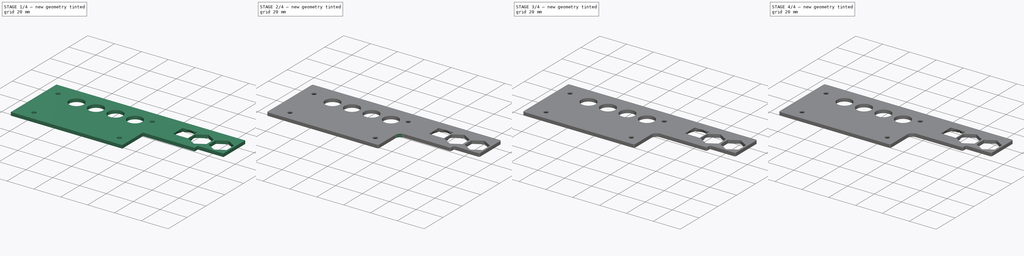
[diagram: build sequence overview — one tinted view per stage of 4, left to right]
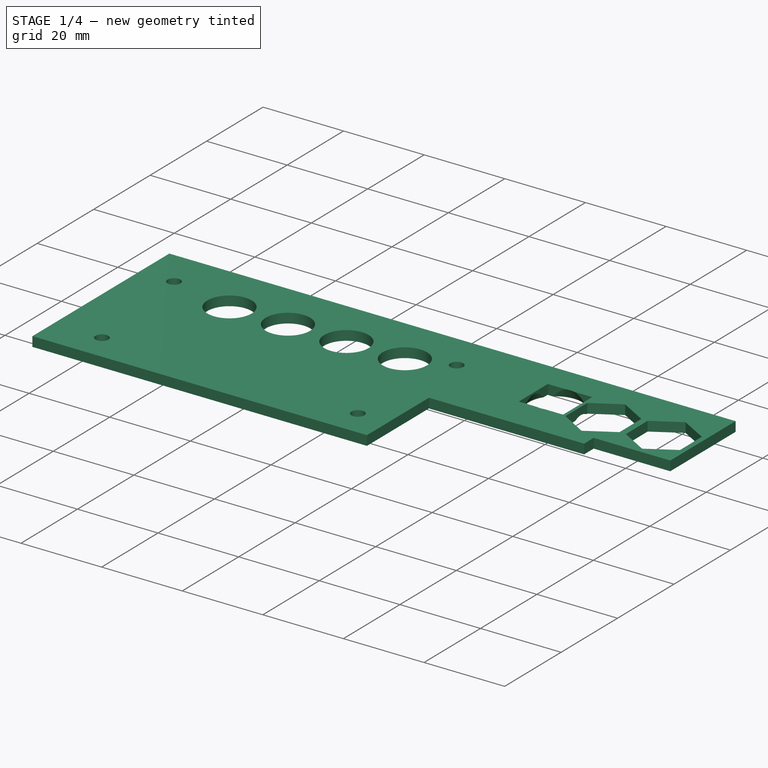
[diagram: stage 1 of 4 — iso view after this stage's code; geometry added in this stage tinted green]
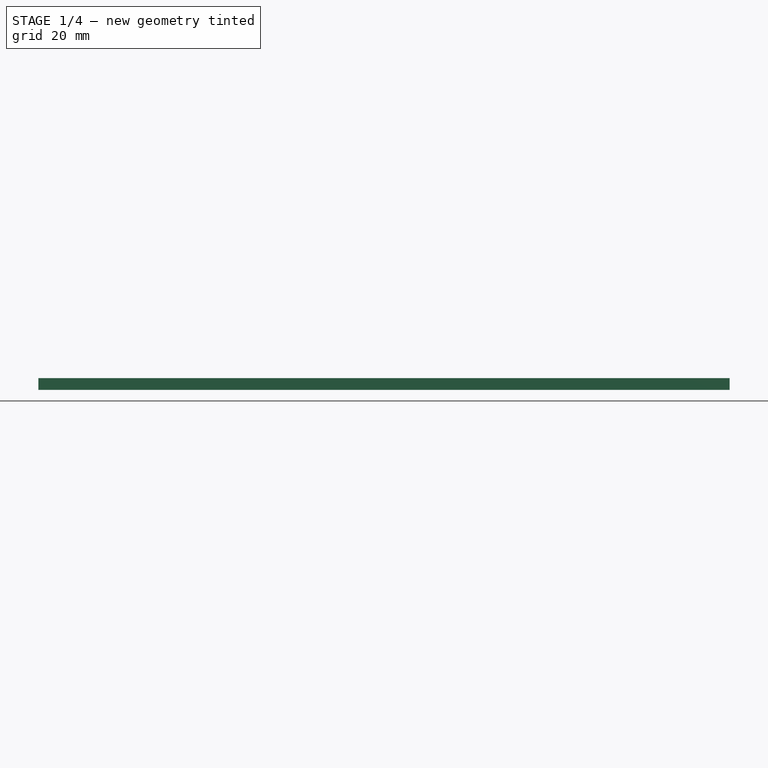
[diagram: stage 1 of 4 — front view after this stage's code; geometry added in this stage tinted green]
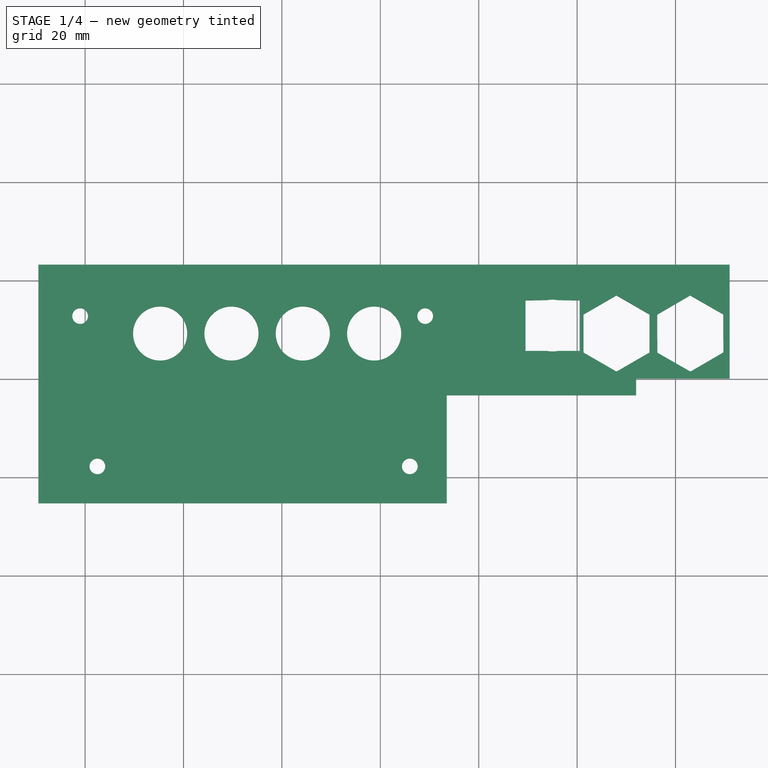
[diagram: stage 1 of 4 — top view after this stage's code; geometry added in this stage tinted green]
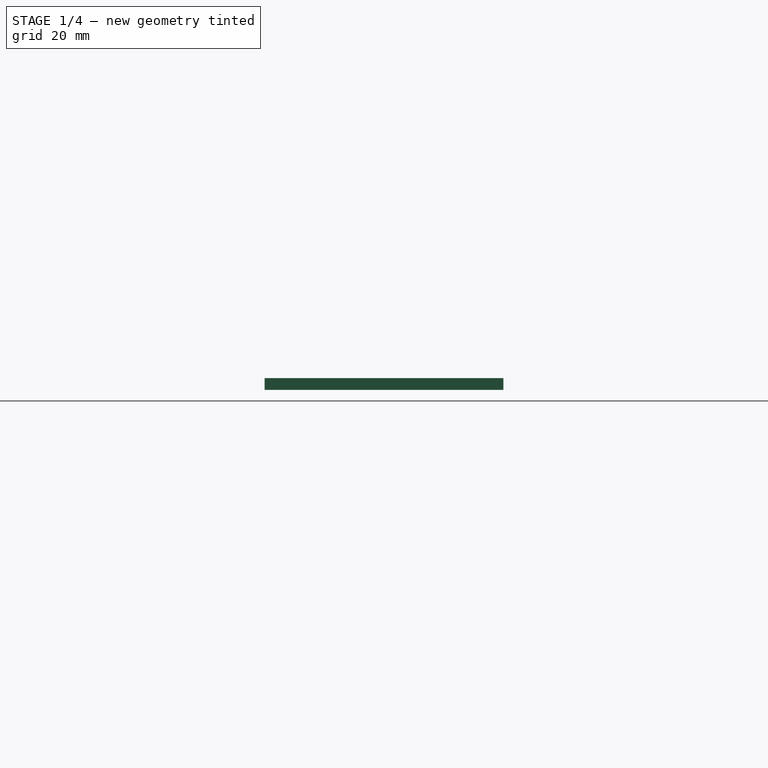
[diagram: stage 1 of 4 — right view after this stage's code; geometry added in this stage tinted green]
FCSTD DOCUMENT  (FreeCAD 0.16R6712 (Git))
Label: cover-plates
License: All rights reserved
LicenseURL: http://en.wikipedia.org/wiki/All_rights_reserved
objects: Part::Part2DObjectPython×7, Part::Extrusion×7, Sketcher::SketchObject×2, Part::Fillet×2, PartDesign::Pad×1, PartDesign::Pocket×1, Spreadsheet::Sheet×1, Part::Cone×1, Part::Cut×1, PartDesign::Chamfer×1
note: 25 computed .brp shape members not serialized (recipe doc carries the construction recipe); baked Part::Feature solids carry a one-line shape summary decoded from their .brp

FEATURE [Sketcher::SketchObject] Sketch013
  sketch-geometry (37):
    g0: LineSegment StartX=-9.5 StartY=23.25 StartZ=0 EndX=-9.5 EndY=-3.25 EndZ=0
    g1: Circle CenterX=15.25 CenterY=9.25 CenterZ=0 NormalX=0 NormalY=0 NormalZ=1 Radius=5.5
    g2: Circle CenterX=44.25 CenterY=9.25 CenterZ=0 NormalX=0 NormalY=0 NormalZ=1 Radius=5.5
    g3: Circle CenterX=29.75 CenterY=9.25 CenterZ=0 NormalX=0 NormalY=0 NormalZ=1 Radius=5.5
    g4: Circle CenterX=58.75 CenterY=9.25 CenterZ=0 NormalX=0 NormalY=0 NormalZ=1 Radius=5.5
    g5: Circle CenterX=-1.01165 CenterY=12.8 CenterZ=0 NormalX=0 NormalY=0 NormalZ=1 Radius=1.6
    g6: Circle CenterX=69.12 CenterY=12.8 CenterZ=0 NormalX=0 NormalY=0 NormalZ=1 Radius=1.6
    g7: LineSegment StartX=100.5 StartY=16 StartZ=0 EndX=89.5 EndY=16 EndZ=0
    g8: LineSegment StartX=-9.5 StartY=23.25 StartZ=0 EndX=131 EndY=23.25 EndZ=0
    g9: LineSegment StartX=112 StartY=-3.27864 StartZ=0 EndX=112 EndY=0.109842 EndZ=0
    g10: LineSegment StartX=101.301 StartY=5.37793 StartZ=0 EndX=108.004 EndY=1.51217 EndZ=0
    g11: LineSegment StartX=108.004 StartY=1.51217 StartZ=0 EndX=114.703 EndY=5.38424 EndZ=0
    g12: LineSegment StartX=114.703 StartY=5.38424 StartZ=0 EndX=114.699 EndY=13.1221 EndZ=0
    g13: LineSegment StartX=114.699 StartY=13.1221 StartZ=0 EndX=107.996 EndY=16.9878 EndZ=0
    g14: LineSegment StartX=107.996 StartY=16.9878 StartZ=0 EndX=101.297 EndY=13.1158 EndZ=0
    g15: LineSegment StartX=101.297 StartY=13.1158 StartZ=0 EndX=101.301 EndY=5.37793 EndZ=0
    g16: Circle [constr] CenterX=108 CenterY=9.25 CenterZ=0 NormalX=0 NormalY=0 NormalZ=1 Radius=7.73783
    g17: LineSegment StartX=116.307 StartY=5.35266 StartZ=0 EndX=123.029 EndY=1.50529 EndZ=0
    g18: LineSegment StartX=123.029 StartY=1.50529 StartZ=0 EndX=129.722 EndY=5.40262 EndZ=0
    g19: LineSegment StartX=129.722 StartY=5.40262 StartZ=0 EndX=129.693 EndY=13.1473 EndZ=0
    g20: LineSegment StartX=129.693 StartY=13.1473 StartZ=0 EndX=122.971 EndY=16.9947 EndZ=0
    g21: LineSegment StartX=122.971 StartY=16.9947 StartZ=0 EndX=116.278 EndY=13.0974 EndZ=0
    g22: LineSegment StartX=116.278 StartY=13.0974 StartZ=0 EndX=116.307 EndY=5.35266 EndZ=0
    g23: Circle [constr] CenterX=123 CenterY=9.25 CenterZ=0 NormalX=0 NormalY=0 NormalZ=1 Radius=7.74477
    g24: LineSegment [constr] StartX=-1.01165 StartY=12.8 StartZ=0 EndX=69.12 EndY=12.8 EndZ=0
    g25: LineSegment StartX=73.5 StartY=-25.25 StartZ=0 EndX=73.5 EndY=-3.27864 EndZ=0
    g26: LineSegment StartX=73.5 StartY=-3.27864 StartZ=0 EndX=112 EndY=-3.27864 EndZ=0
    g27: LineSegment StartX=73.5 StartY=-25.25 StartZ=0 EndX=-9.5 EndY=-25.25 EndZ=0
    g28: LineSegment StartX=-9.5 StartY=-3.25 StartZ=0 EndX=-9.5 EndY=-25.25 EndZ=0
    g29: Circle CenterX=2.5 CenterY=-17.75 CenterZ=0 NormalX=0 NormalY=0 NormalZ=1 Radius=1.6
    g30: Circle CenterX=66 CenterY=-17.75 CenterZ=0 NormalX=0 NormalY=0 NormalZ=1 Radius=1.6
    g31: LineSegment StartX=112 StartY=0.109842 StartZ=0 EndX=131 EndY=0.109842 EndZ=0
    g32: LineSegment StartX=100.5 StartY=16 StartZ=0 EndX=100.5 EndY=5.7 EndZ=0
    g33: LineSegment StartX=89.5 StartY=16 StartZ=0 EndX=89.5 EndY=5.7 EndZ=0
    g34: LineSegment StartX=100.5 StartY=5.7 StartZ=0 EndX=89.5 EndY=5.7 EndZ=0
    g35: LineSegment StartX=131 StartY=23.25 StartZ=0 EndX=131 EndY=0.109842 EndZ=0
    g36: LineSegment [constr] StartX=2.5 StartY=-17.75 StartZ=0 EndX=66 EndY=-17.75 EndZ=0
  constraints (77):
    c: Vertical(g0)
    c: Radius(g1) = 5.5
    c: Equal(g1,g2)
    c: Equal(g1,g3)
    c: Equal(g1,g4)
    c: Radius(g5) = 1.6
    c: Equal(g5,g6)
    c: Horizontal(g8)
    c: DistanceY(g-1,g1) = 9.25
    c: DistanceY(g1,g8) = 14
    c: DistanceX(g0,g-1) = 9.5
    c: Distance(g0) = 26.5
    c: Vertical(g9)
    c: DistanceX(g-1,g9) = 112
    c: Coincident(g10,g11)
    c: Coincident(g11,g12)
    c: Coincident(g12,g13)
    c: Coincident(g13,g14)
    c: Coincident(g14,g15)
    c: Coincident(g15,g10)
    c: Equal(g10, g11-g15) x5
    c: PointOnObject(g10,g16)
    c: PointOnObject(g11,g16)
    c: PointOnObject(g12,g16)
    c: PointOnObject(g13,g16)
    c: PointOnObject(g14,g16)
    c: PointOnObject(g15,g16)
    c: Coincident(g17,g18)
    c: Coincident(g18,g19)
    c: Coincident(g19,g20)
    c: Coincident(g20,g21)
    c: Coincident(g21,g22)
    c: Coincident(g22,g17)
    c: Equal(g17, g18-g22) x5
    c: PointOnObject(g17,g23)
    c: PointOnObject(g18,g23)
    c: PointOnObject(g19,g23)
    c: PointOnObject(g20,g23)
    c: PointOnObject(g21,g23)
    c: PointOnObject(g22,g23)
    c: DistanceY(g5,g1) = -3.55
    c: Horizontal(g24)
    c: DistanceY(g7,g1) = -6.75
    c: Vertical(g25)
    c: DistanceX(g0,g25) = 83
    c: DistanceY(g25,g9) = 0
    c: Coincident(g26,g25)
    c: Coincident(g26,g9)
    c: Coincident(g27,g25)
    c: Horizontal(g27)
    c: Coincident(g28,g0)
    c: Coincident(g8,g0)
    c: Coincident(g31,g9)
    c: Horizontal(g31)
    c: Horizontal(g7)
    c: Coincident(g32,g7)
    c: Vertical(g32)
    c: Distance(g32) = 10.3
    c: Coincident(g7,g33)
    c: Vertical(g33)
    c: Coincident(g34,g32)
    c: Coincident(g34,g33)
    c: Horizontal(g34)
    c: Coincident(g35,g8)
    c: Coincident(g35,g31)
    c: Vertical(g35)
    c: Coincident(g28,g27)
    c: Radius(g29) = 1.6
    c: Radius(g30) = 1.6
    c: Coincident(g36,g29)
    c: Coincident(g36,g30)
    c: Horizontal(g36)
    c: Distance(g36) = 63.5
    c: DistanceY(g29,g0) = 41
    c: Vertical(g28)
    c: DistanceX(g27,g29) = 12
    c: Distance(g0,g27) = 48.5
FEATURE [PartDesign::Pad] Pad
  Length = 2.4
  Length2 = 100
  Sketch = -> Sketch013
  Type = 0
FEATURE [Sketcher::SketchObject] Sketch
  Placement = pos=(0,0,2.4) rot=(0,0,1;0rad)
  Support = -> Pad [Face35]
  sketch-geometry (4):
    g0: LineSegment StartX=-42.7726 StartY=13.5107 StartZ=0 EndX=-34.3973 EndY=13.5107 EndZ=0
    g1: LineSegment StartX=-34.3973 StartY=13.5107 StartZ=0 EndX=-34.3973 EndY=9.80998 EndZ=0
    g2: LineSegment StartX=-34.3973 StartY=9.80998 StartZ=0 EndX=-42.7726 EndY=9.80998 EndZ=0
    g3: LineSegment StartX=-42.7726 StartY=9.80998 StartZ=0 EndX=-42.7726 EndY=13.5107 EndZ=0
  constraints (8):
    c: Coincident(g0,g1)
    c: Coincident(g1,g2)
    c: Coincident(g2,g3)
    c: Coincident(g3,g0)
    c: Horizontal(g0)
    c: Horizontal(g2)
    c: Vertical(g1)
    c: Vertical(g3)
FEATURE [PartDesign::Pocket] Pocket
  Length = 0.1
  Sketch = -> Sketch
  Type = 0
FEATURE [Spreadsheet::Sheet] Spreadsheet
  cells = A1=text extrude; B1(text_height)=0.6; A2=font height; B2(font_height)=2.8
FEATURE [Part::Cone] Cone
  Angle = 360
  Height = 2.51
  Placement = pos=(95,10.8585,-1.91454e-05) rot=(0,0,1;0rad)
  Radius1 = 6.6
  Radius2 = 5.2
FEATURE [Part::Cut] Cut
  Base = -> Pocket
  Tool = -> Cone
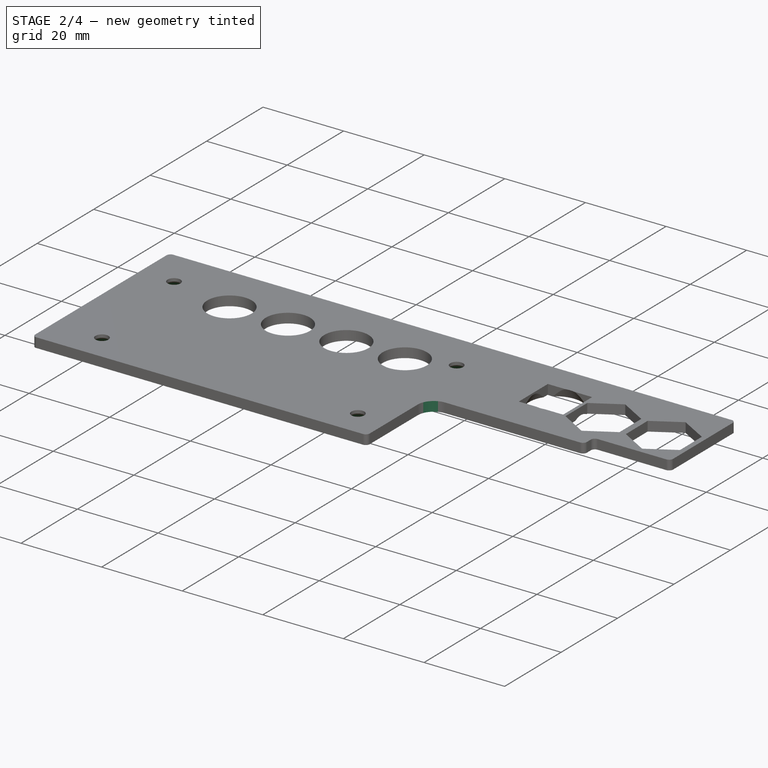
[diagram: stage 2 of 4 — iso view after this stage's code; geometry added in this stage tinted green]
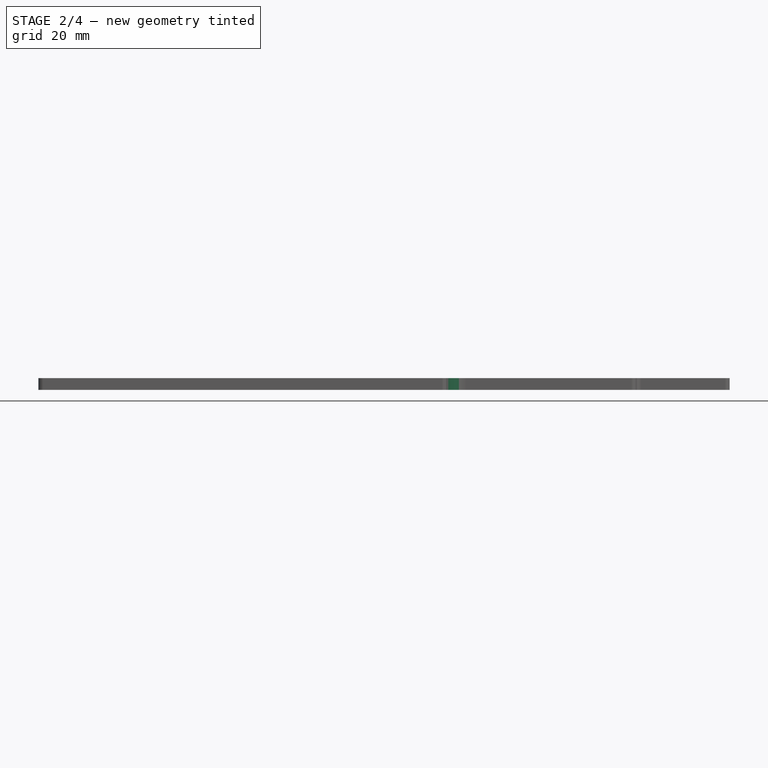
[diagram: stage 2 of 4 — front view after this stage's code; geometry added in this stage tinted green]
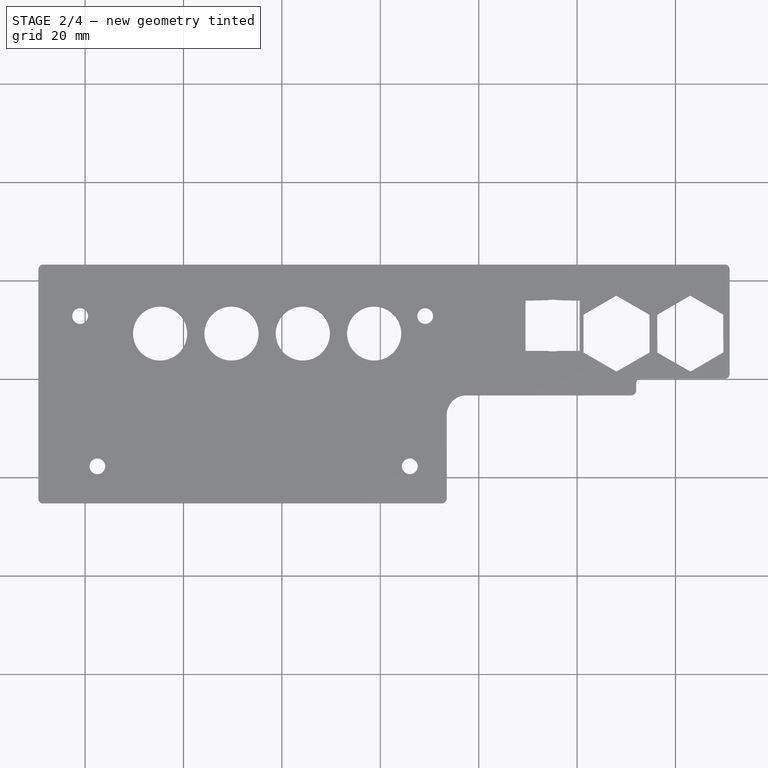
[diagram: stage 2 of 4 — top view after this stage's code; geometry added in this stage tinted green]
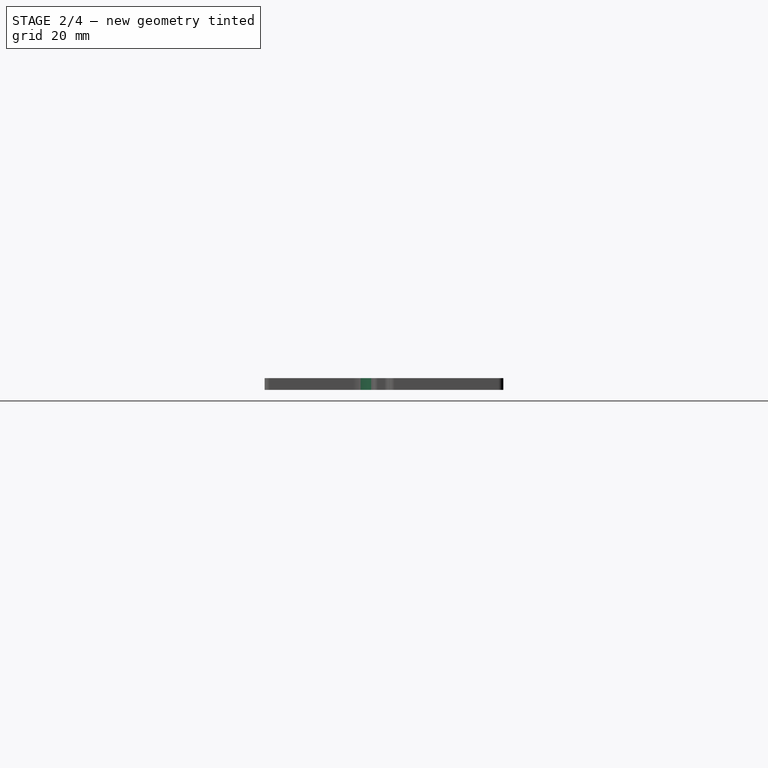
[diagram: stage 2 of 4 — right view after this stage's code; geometry added in this stage tinted green]
FEATURE [PartDesign::Chamfer] Chamfer
  Base = -> Cut [Edge22,Edge21,Edge50,Edge19]
  Size = 1.65
FEATURE [Part::Fillet] Fillet
  Base = -> Chamfer
  Edges = 7 edges r=1: [Edge46,Edge47,Edge51,Edge53,Edge55,Edge57,Edge59]
FEATURE [Part::Fillet] Fillet001
  Base = -> Fillet
  Edges = 1 edges r=4: [Edge78]
note: 7 file-system paths scrubbed to <path> (originals preserved in the JSON sidecar)
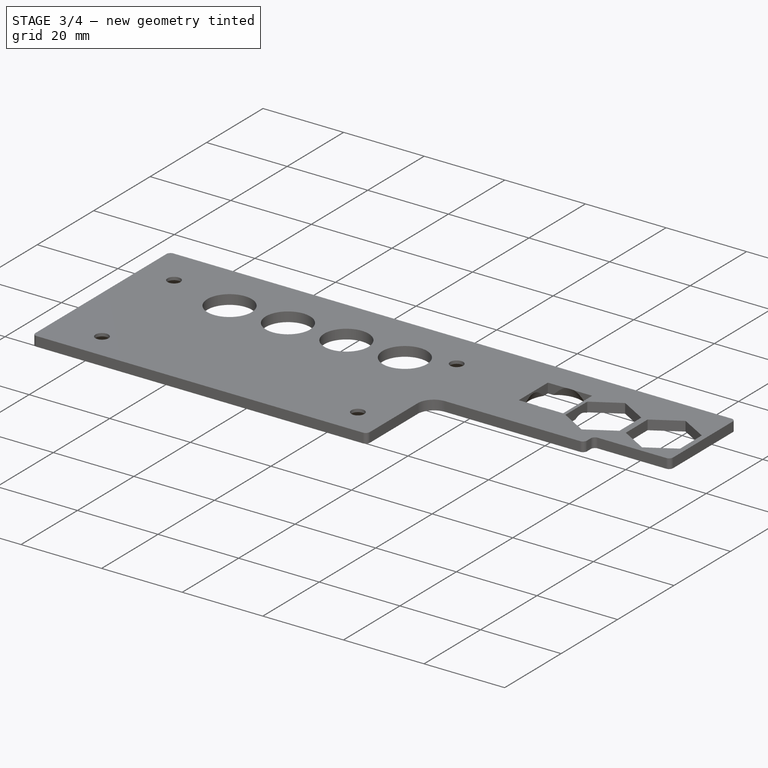
[diagram: stage 3 of 4 — iso view after this stage's code; geometry added in this stage tinted green]
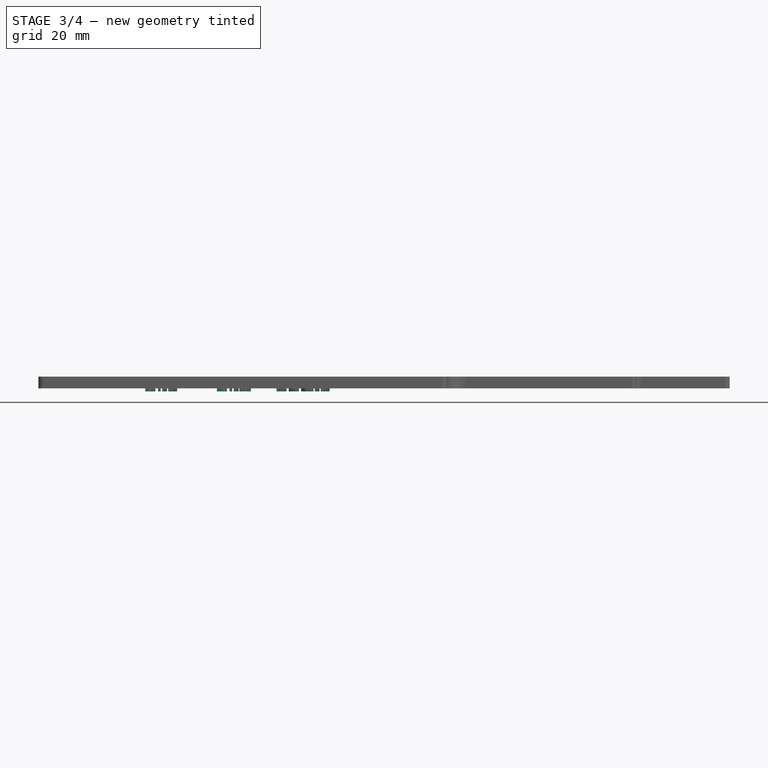
[diagram: stage 3 of 4 — front view after this stage's code; geometry added in this stage tinted green]
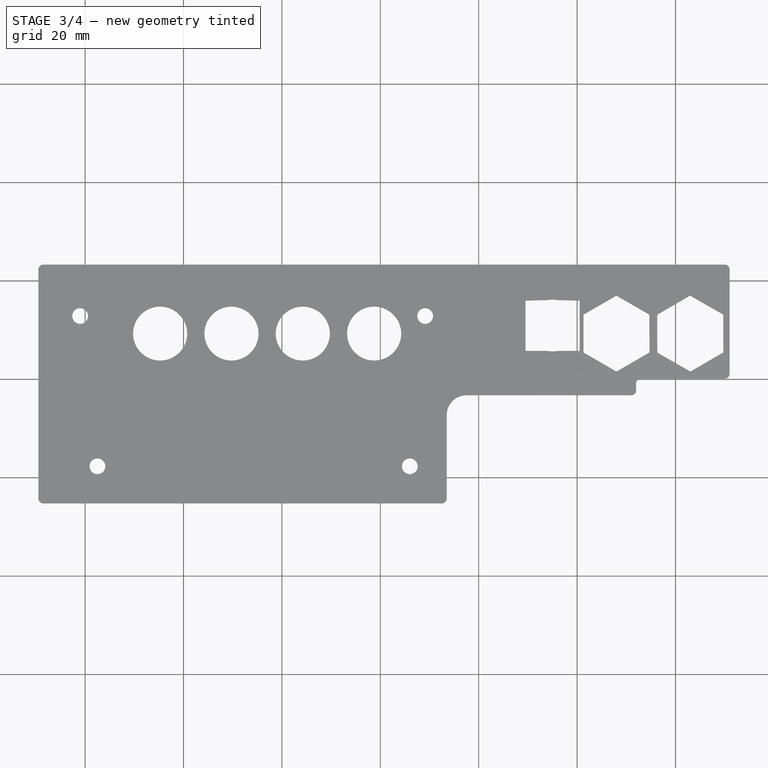
[diagram: stage 3 of 4 — top view after this stage's code; geometry added in this stage tinted green]
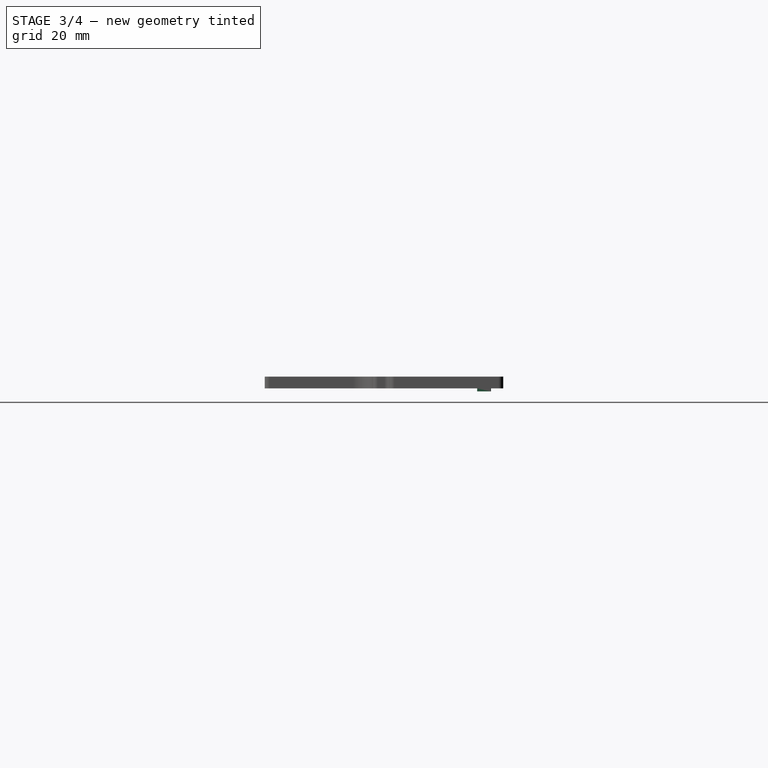
[diagram: stage 3 of 4 — right view after this stage's code; geometry added in this stage tinted green]
FEATURE [Part::Part2DObjectPython] ShapeString006  label="L-OUT"  # Draft 2D object (typed FeaturePython)
  FontFile = <path>
  Size = 2.8
  String = L-OUT
  Tracking = 0
  expr: Size = Spreadsheet.font_height
FEATURE [Part::Extrusion] Extrude006  label="Extrude-L-OUT"
  Base = -> ShapeString006
  Dir = (0,0,0.6)
  Placement = pos=(50,18,0) rot=(0,1,0;3.14159rad)
  Solid = false
  expr: Dir.z = Spreadsheet.text_height
FEATURE [Part::Part2DObjectPython] ShapeString007  label="R-IN"  # Draft 2D object (typed FeaturePython)
  FontFile = <path>
  Size = 2.8
  String = R-IN
  Tracking = 0
  expr: Size = Spreadsheet.font_height
FEATURE [Part::Extrusion] Extrude007  label="Extrude-R-IN"
  Base = -> ShapeString007
  Dir = (0,0,0.6)
  Placement = pos=(34,18,0) rot=(0,1,0;3.14159rad)
  Solid = false
  expr: Dir.z = Spreadsheet.text_height
FEATURE [Part::Part2DObjectPython] ShapeString008  label="L-IN"  # Draft 2D object (typed FeaturePython)
  FontFile = <path>
  Size = 2.8
  String = L-IN
  Tracking = 0
  expr: Size = Spreadsheet.font_height
FEATURE [Part::Extrusion] Extrude008  label="Extrude-L-IN"
  Base = -> ShapeString008
  Dir = (0,0,0.6)
  Placement = pos=(19,18,0) rot=(0,1,0;3.14159rad)
  Solid = false
  expr: Dir.z = Spreadsheet.text_height
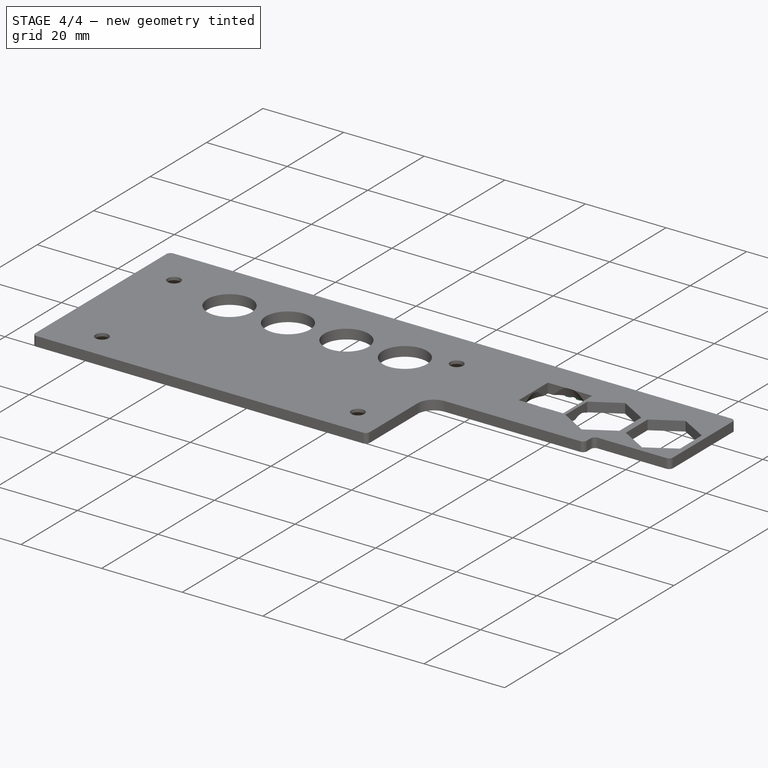
[diagram: stage 4 of 4 — iso view after this stage's code; geometry added in this stage tinted green]
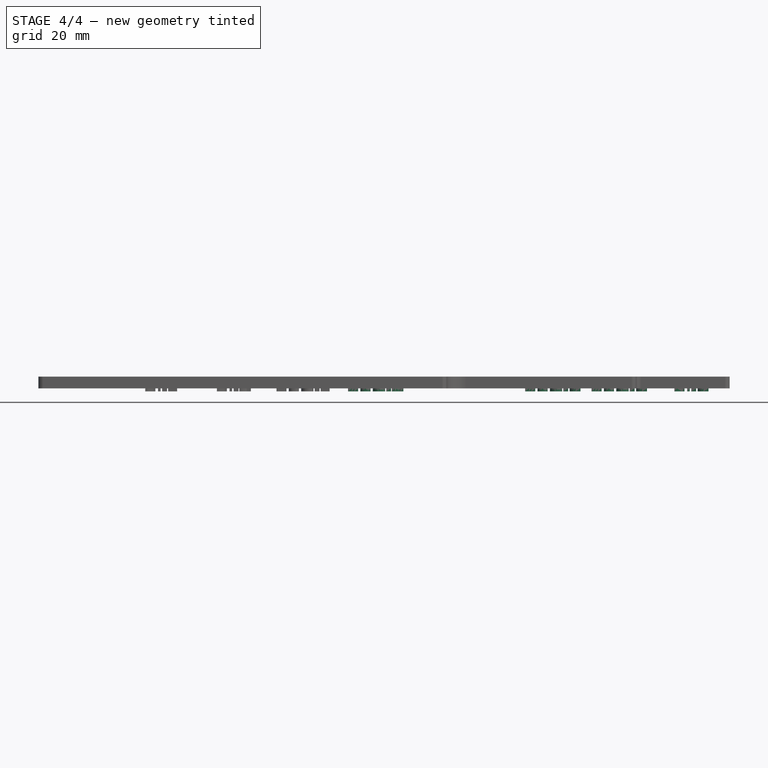
[diagram: stage 4 of 4 — front view after this stage's code; geometry added in this stage tinted green]
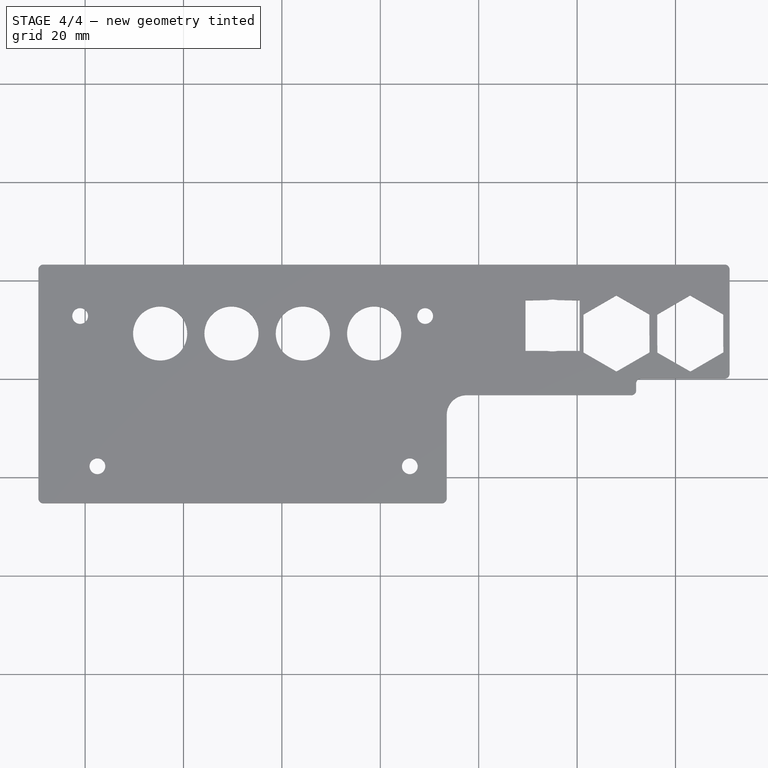
[diagram: stage 4 of 4 — top view after this stage's code; geometry added in this stage tinted green]
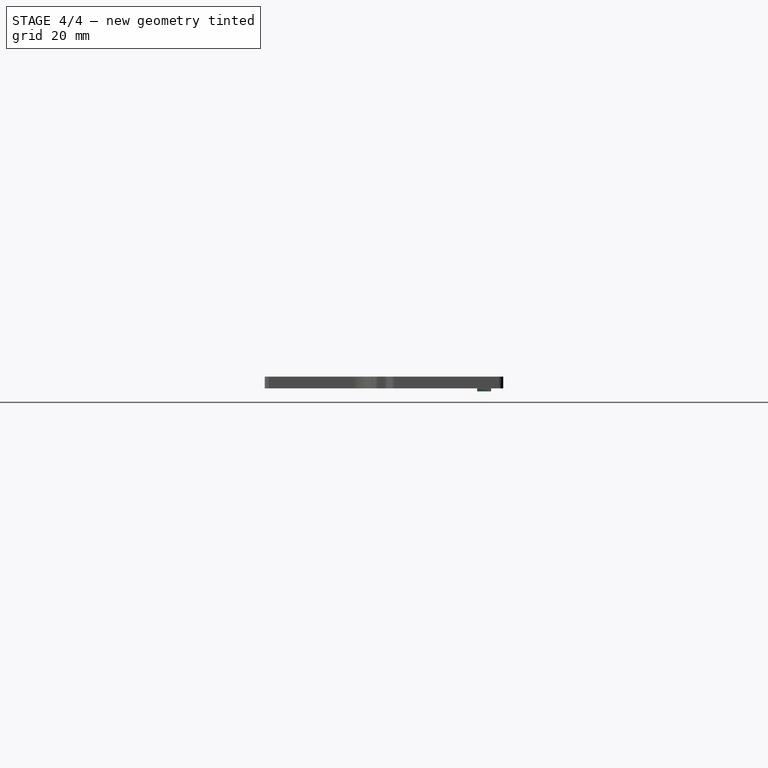
[diagram: stage 4 of 4 — right view after this stage's code; geometry added in this stage tinted green]
FEATURE [Part::Part2DObjectPython] ShapeString002  label="D-IN"  # Draft 2D object (typed FeaturePython)
  FontFile = <path>
  Size = 2.8
  String = D-IN
  Tracking = 0
  expr: Size = Spreadsheet.font_height
FEATURE [Part::Extrusion] Extrude002  label="Extrude-D-IN"
  Base = -> ShapeString002
  Dir = (0,0,0.6)
  Placement = pos=(127,18,0) rot=(0,1,0;3.14159rad)
  Solid = false
  expr: Dir.z = Spreadsheet.text_height
FEATURE [Part::Part2DObjectPython] ShapeString003  label="D-OUT"  # Draft 2D object (typed FeaturePython)
  FontFile = <path>
  Size = 2.8
  String = D-OUT
  Tracking = 0
  expr: Size = Spreadsheet.font_height
FEATURE [Part::Extrusion] Extrude003  label="Extrude-D-OUT-C"
  Base = -> ShapeString003
  Dir = (0,0,0.6)
  Placement = pos=(114.5,18,0) rot=(0,1,0;3.14159rad)
  Solid = false
  expr: Dir.z = Spreadsheet.text_height
FEATURE [Part::Part2DObjectPython] ShapeString004  label="D-OUT001"  # Draft 2D object (typed FeaturePython)
  FontFile = <path>
  Size = 2.8
  String = D-OUT
  Tracking = 0
  expr: Size = Spreadsheet.font_height
FEATURE [Part::Extrusion] Extrude004  label="Extrude-D-OUT-O"
  Base = -> ShapeString004
  Dir = (0,0,0.6)
  Placement = pos=(101,18,0) rot=(0,1,0;3.14159rad)
  Solid = false
  expr: Dir.z = Spreadsheet.text_height
FEATURE [Part::Part2DObjectPython] ShapeString005  label="R-OUT"  # Draft 2D object (typed FeaturePython)
  FontFile = <path>
  Size = 2.8
  String = R-OUT
  Tracking = 0
  expr: Size = Spreadsheet.font_height
FEATURE [Part::Extrusion] Extrude005  label="Extrude-R-OUT"
  Base = -> ShapeString005
  Dir = (0,0,0.6)
  Placement = pos=(65,18,0) rot=(0,1,0;3.14159rad)
  Solid = false
  expr: Dir.z = Spreadsheet.text_height
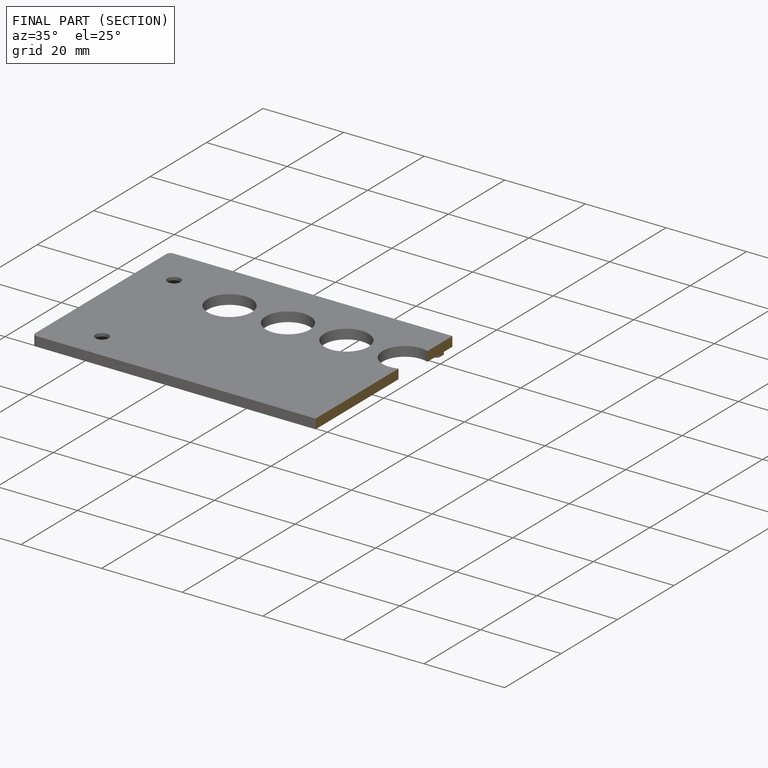
[diagram: finished part — half-section view (interior)]
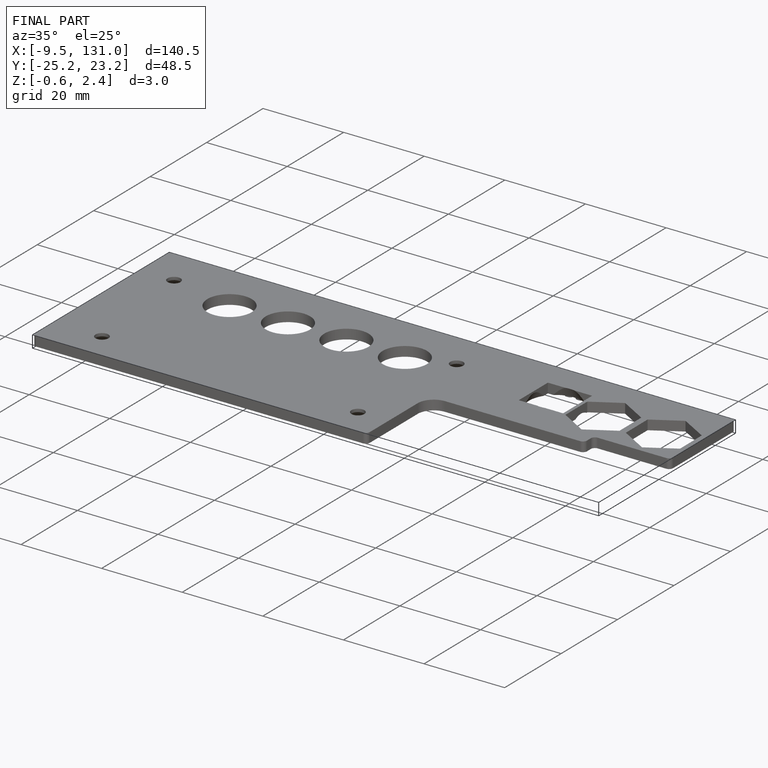
[diagram: finished part — iso view with bounding-box wireframe]
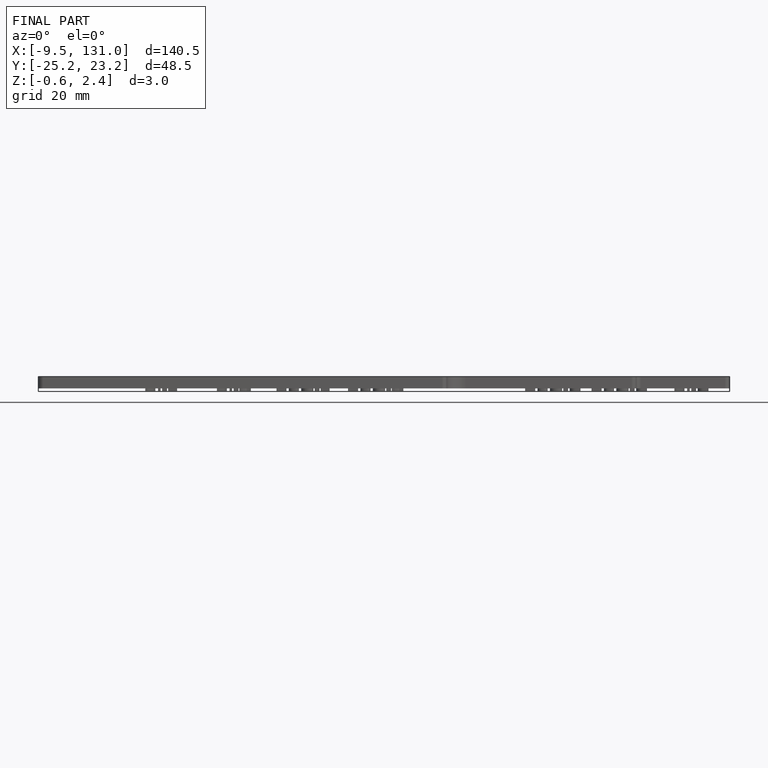
[diagram: finished part — front view with bounding-box wireframe]
